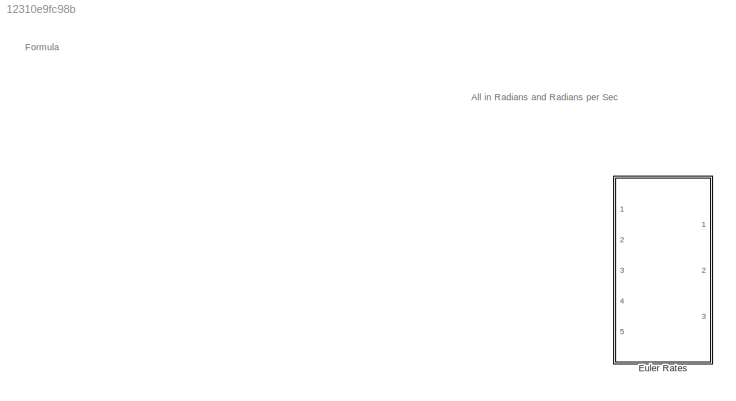
MODEL slx_12310e9fc98b
KIND model
CONFIG AbsTol = auto
CONFIG FixedStep = auto
CONFIG MaxStep = auto
CONFIG MinStep = auto
CONFIG RelTol = 1e-3
CONFIG SampleTimeConstraint = Unconstrained
CONFIG Solver = VariableStepAuto
CONFIG SolverMode = SingleTasking
CONFIG SolverName = VariableStepAuto
CONFIG StartTime = 0.0
CONFIG StopTime = 10.0
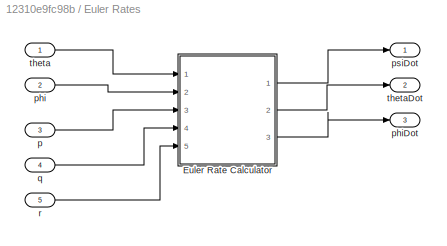
BLOCK [SubSystem] Euler Rates
  Ports = [5, 3]
  RequestExecContextInheritance = off
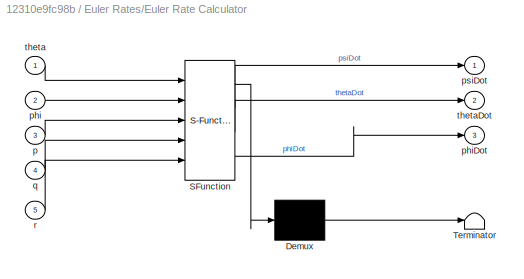
BLOCK [SubSystem] Euler Rates/Euler Rate Calculator
  ErrorFcn = Stateflow.Translate.translate
  PermitHierarchicalResolution = ExplicitOnly
  Ports = [5, 3]
  RequestExecContextInheritance = off
  SFBlockType = MATLAB Function
  TreatAsAtomicUnit = on
BLOCK [Demux] Euler Rates/Euler Rate Calculator/ Demux 
  Outputs = 1
  Ports = [1, 1]
BLOCK [S-Function] Euler Rates/Euler Rate Calculator/ SFunction 
  EnableBusSupport = on
  FunctionName = sf_sfun
  PortCounts = [5 4]
  Ports = [5, 4]
  SFunctionDeploymentMode = off
  Tag = Stateflow S-Function EulerRatesFromAngularVelocity 11
BLOCK [Terminator] Euler Rates/Euler Rate Calculator/ Terminator 
BLOCK [Inport] Euler Rates/Euler Rate Calculator/p
  Port = 3
BLOCK [Inport] Euler Rates/Euler Rate Calculator/phi
  Port = 2
BLOCK [Outport] Euler Rates/Euler Rate Calculator/phiDot
  Port = 3
BLOCK [Outport] Euler Rates/Euler Rate Calculator/psiDot
BLOCK [Inport] Euler Rates/Euler Rate Calculator/q
  Port = 4
BLOCK [Inport] Euler Rates/Euler Rate Calculator/r
  Port = 5
BLOCK [Inport] Euler Rates/Euler Rate Calculator/theta
BLOCK [Outport] Euler Rates/Euler Rate Calculator/thetaDot
  Port = 2
BLOCK [Inport] Euler Rates/p
  Port = 3
BLOCK [Inport] Euler Rates/phi
  Port = 2
BLOCK [Outport] Euler Rates/phiDot
  Port = 3
BLOCK [Outport] Euler Rates/psiDot
BLOCK [Inport] Euler Rates/q
  Port = 4
BLOCK [Inport] Euler Rates/r
  Port = 5
BLOCK [Inport] Euler Rates/theta
BLOCK [Outport] Euler Rates/thetaDot
  Port = 2
ANNOTATION (root): All in Radians and Radians per Sec
ANNOTATION (root): Formula
LINE Euler Rates/Euler Rate Calculator:1 -> Euler Rates/psiDot:1
LINE Euler Rates/Euler Rate Calculator:2 -> Euler Rates/thetaDot:1
LINE Euler Rates/Euler Rate Calculator:3 -> Euler Rates/phiDot:1
LINE Euler Rates/p:1 -> Euler Rates/Euler Rate Calculator:3
LINE Euler Rates/phi:1 -> Euler Rates/Euler Rate Calculator:2
LINE Euler Rates/q:1 -> Euler Rates/Euler Rate Calculator:4
LINE Euler Rates/r:1 -> Euler Rates/Euler Rate Calculator:5
LINE Euler Rates/theta:1 -> Euler Rates/Euler Rate Calculator:1
CHART Euler Rates/Euler Rate Calculator states=1 transitions=1
  STATE_LABEL 'eML_blk_kernel()'
  STATE_LABEL 'SCRIPT:\nfunction [psiDot,thetaDot,phiDot] = fcn(theta,phi,p,q,r)\n\npsiDot =  sin(phi)/cos(theta)*q + cos(phi)/cos(theta)*r;\nthetaDot = cos(phi)*q - sin(phi)*r;\nphiDot = p + sin(phi)*tan(theta)*q + cos(phi)*tan(theta)*r;\nend'
